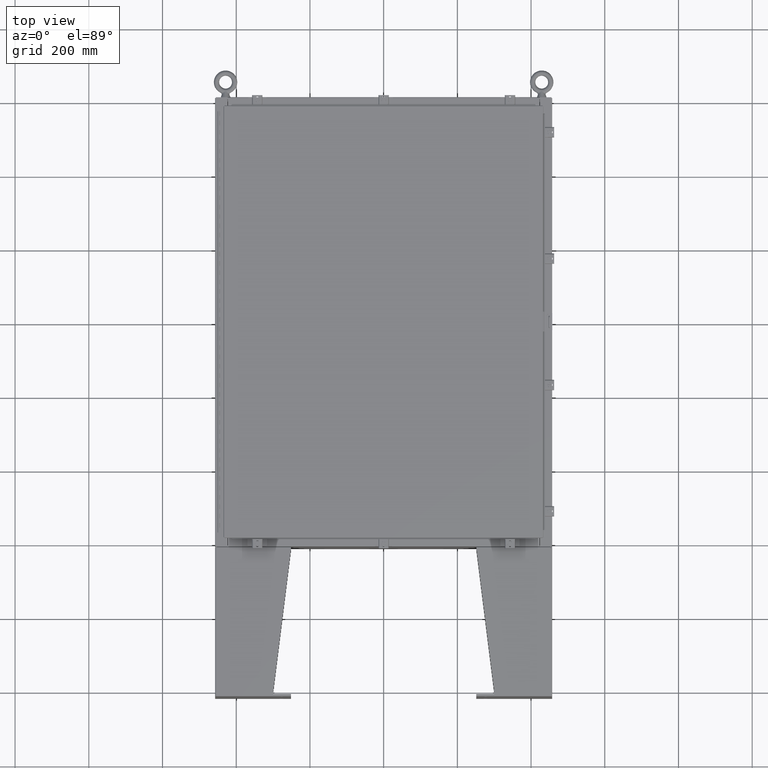
[diagram: clean part render]
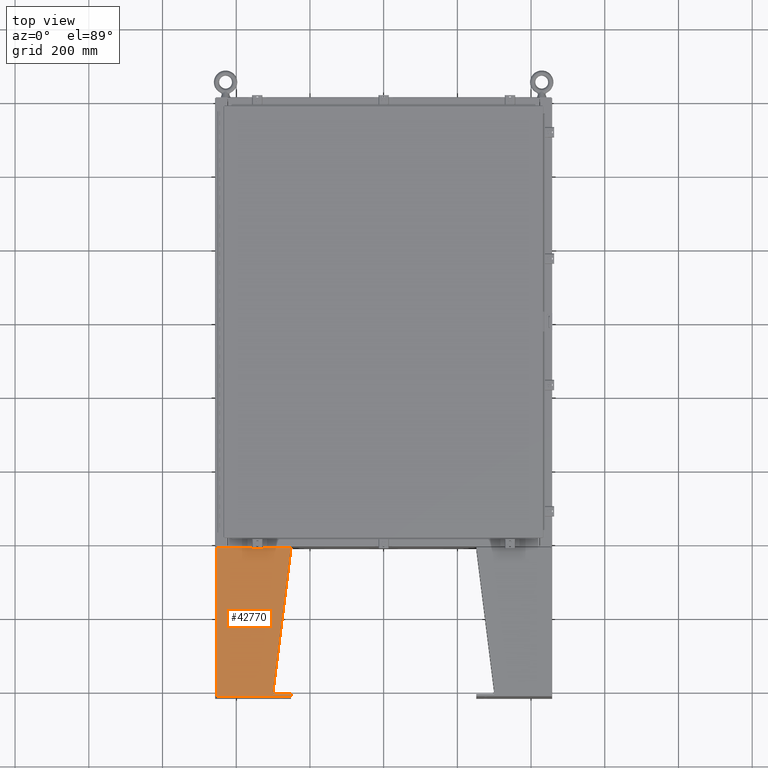
[diagram: same view with one face highlighted and labeled with its STEP entity id]
A machine part, top view. The second image highlights one B-rep face of the part: STEP entity #42770.
In plain terms, the highlighted planar face has unit normal (0, 0, -1).
Its self-contained STEP definition (entity closure, byte-faithful):
#985 = VECTOR ( 'NONE', #51697, 39.37007874015748100 ) ;
#3551 = LINE ( 'NONE', #19543, #38277 ) ;
#3887 = DIRECTION ( 'NONE',  ( -4.399772607369800400E-016, 0.9922942345449394800, 0.1239038017531047900 ) ) ;
#4223 = CARTESIAN_POINT ( 'NONE',  ( -8.000000000000026600, -7.750000000000000000, 8.000999999999997700 ) ) ;
#5050 = EDGE_CURVE ( 'NONE', #57338, #37158, #3551, .T. ) ;
#8362 = EDGE_CURVE ( 'NONE', #16883, #39706, #58387, .T. ) ;
#8589 = EDGE_CURVE ( 'NONE', #16329, #51622, #44264, .T. ) ;
#10152 = VECTOR ( 'NONE', #38637, 39.37007874015748100 ) ;
#11689 = EDGE_CURVE ( 'NONE', #51622, #39706, #37108, .T. ) ;
#11769 = EDGE_CURVE ( 'NONE', #16883, #57338, #22216, .T. ) ;
#12008 = PLANE ( 'NONE',  #47228 ) ;
#12948 = CARTESIAN_POINT ( 'NONE',  ( -8.000000000000019500, -7.749999999999999100, 6.052216497445926700 ) ) ;
#13471 = CARTESIAN_POINT ( 'NONE',  ( -8.000000000000012400, 7.857000000000001100, 8.000999999999997700 ) ) ;
#16329 = VERTEX_POINT ( 'NONE', #52071 ) ;
#16883 = VERTEX_POINT ( 'NONE', #23415 ) ;
#19543 = CARTESIAN_POINT ( 'NONE',  ( -8.000000000000026600, 8.000000000000001800, 8.000999999999997700 ) ) ;
#21129 = CARTESIAN_POINT ( 'NONE',  ( -8.000000000000026600, 8.000000000000001800, 8.000999999999997700 ) ) ;
#21675 = CARTESIAN_POINT ( 'NONE',  ( -8.000000000000012400, 7.857000000000001100, 0.03900000000000469100 ) ) ;
#22216 = LINE ( 'NONE', #22785, #10152 ) ;
#22785 = CARTESIAN_POINT ( 'NONE',  ( -8.000000000000026600, -7.999999999999999100, 8.000999999999997700 ) ) ;
#23415 = CARTESIAN_POINT ( 'NONE',  ( -7.999999999999999100, -7.999999999999999100, 0.03899999999999813300 ) ) ;
#25692 = DIRECTION ( 'NONE',  ( 3.550958521948298200E-015, 0.0000000000000000000, -1.000000000000000000 ) ) ;
#26165 = DIRECTION ( 'NONE',  ( 0.0000000000000000000, 1.000000000000000000, 0.0000000000000000000 ) ) ;
#28476 = DIRECTION ( 'NONE',  ( 0.0000000000000000000, 1.000000000000000000, 0.0000000000000000000 ) ) ;
#28746 = ORIENTED_EDGE ( 'NONE', *, *, #5050, .T. ) ;
#31866 = EDGE_CURVE ( 'NONE', #37158, #16329, #38702, .T. ) ;
#32272 = ORIENTED_EDGE ( 'NONE', *, *, #8589, .T. ) ;
#35521 = CARTESIAN_POINT ( 'NONE',  ( -8.000000000000026600, -7.750000000000000000, 8.001000000000006600 ) ) ;
#37049 = ORIENTED_EDGE ( 'NONE', *, *, #31866, .T. ) ;
#37108 = LINE ( 'NONE', #13471, #985 ) ;
#37158 = VERTEX_POINT ( 'NONE', #35521 ) ;
#37454 = FACE_OUTER_BOUND ( 'NONE', #58404, .T. ) ;
#38277 = VECTOR ( 'NONE', #28476, 39.37007874015748100 ) ;
#38637 = DIRECTION ( 'NONE',  ( -3.550958521948298200E-015, 0.0000000000000000000, 1.000000000000000000 ) ) ;
#38702 = LINE ( 'NONE', #4223, #49305 ) ;
#39706 = VERTEX_POINT ( 'NONE', #21675 ) ;
#40460 = DIRECTION ( 'NONE',  ( 3.550958521948298200E-015, 0.0000000000000000000, -1.000000000000000000 ) ) ;
#42166 = VECTOR ( 'NONE', #26165, 39.37007874015748100 ) ;
#42770 = ADVANCED_FACE ( 'NONE', ( #37454 ), #12008, .F. ) ;
#42866 = VECTOR ( 'NONE', #3887, 39.37007874015748100 ) ;
#44264 = LINE ( 'NONE', #12948, #42866 ) ;
#47228 = AXIS2_PLACEMENT_3D ( 'NONE', #21129, #52807, #25692 ) ;
#49065 = CARTESIAN_POINT ( 'NONE',  ( -8.000000000000026600, 7.857000000000001100, 8.000999999999997700 ) ) ;
#49305 = VECTOR ( 'NONE', #40460, 39.37007874015748100 ) ;
#50330 = CARTESIAN_POINT ( 'NONE',  ( -7.999999999999999100, 8.000000000000001800, 0.03899999999999923000 ) ) ;
#50755 = ORIENTED_EDGE ( 'NONE', *, *, #8362, .F. ) ;
#51622 = VERTEX_POINT ( 'NONE', #49065 ) ;
#51697 = DIRECTION ( 'NONE',  ( 0.0000000000000000000, 0.0000000000000000000, -1.000000000000000000 ) ) ;
#52071 = CARTESIAN_POINT ( 'NONE',  ( -8.000000000000019500, -7.750000000000000000, 6.052216497445926700 ) ) ;
#52807 = DIRECTION ( 'NONE',  ( 1.000000000000000000, 0.0000000000000000000, 3.550958521948298200E-015 ) ) ;
#54458 = ORIENTED_EDGE ( 'NONE', *, *, #11689, .T. ) ;
#55558 = CARTESIAN_POINT ( 'NONE',  ( -8.000000000000026600, -7.999999999999999100, 8.000999999999997700 ) ) ;
#57269 = ORIENTED_EDGE ( 'NONE', *, *, #11769, .T. ) ;
#57338 = VERTEX_POINT ( 'NONE', #55558 ) ;
#58387 = LINE ( 'NONE', #50330, #42166 ) ;
#58404 = EDGE_LOOP ( 'NONE', ( #37049, #32272, #54458, #50755, #57269, #28746 ) ) ;